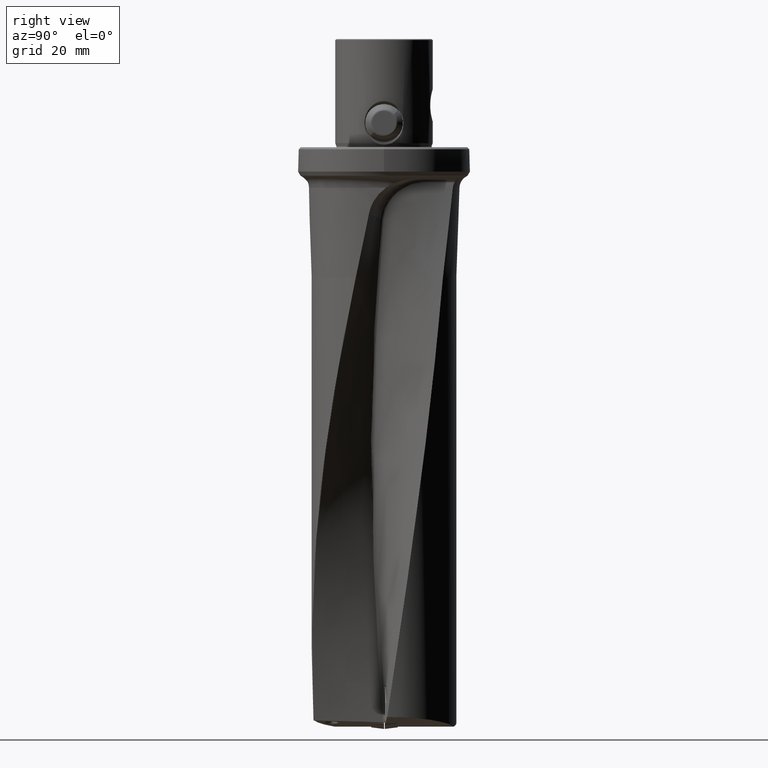
[diagram: clean part render]
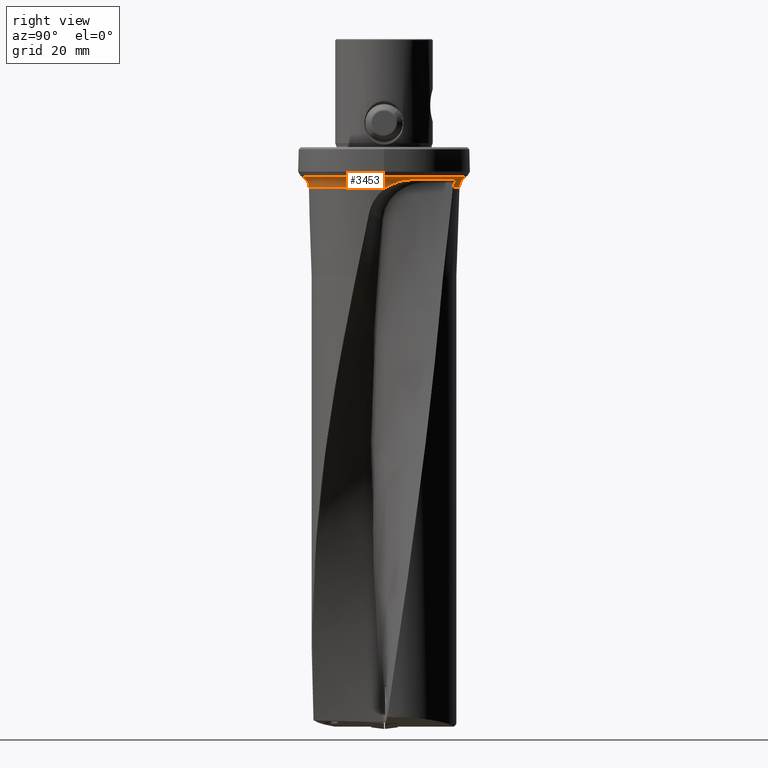
[diagram: same view with one face highlighted and labeled with its STEP entity id]
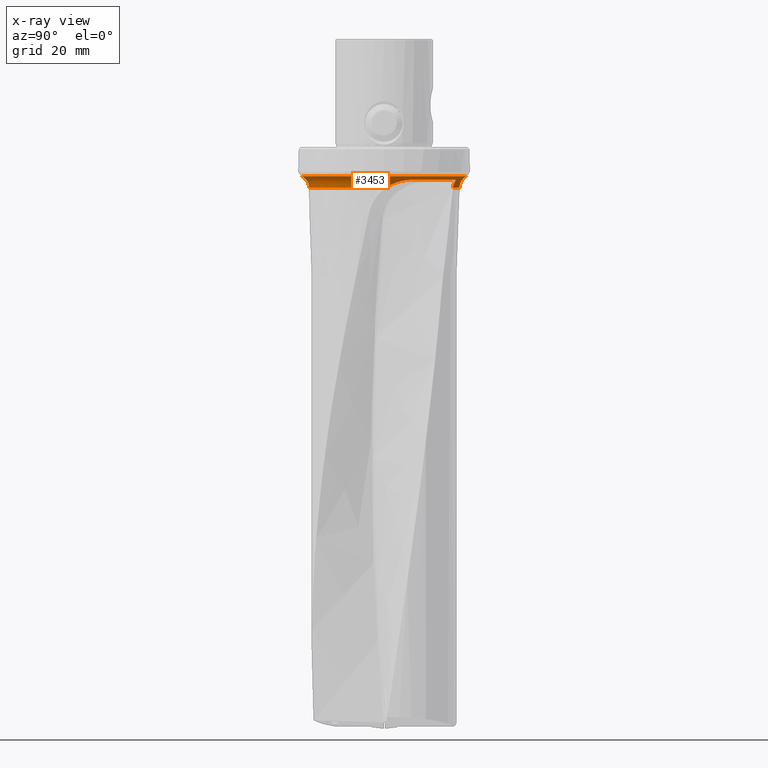
[diagram: x-ray of the same camera — body ghosted, the highlighted face saturated]
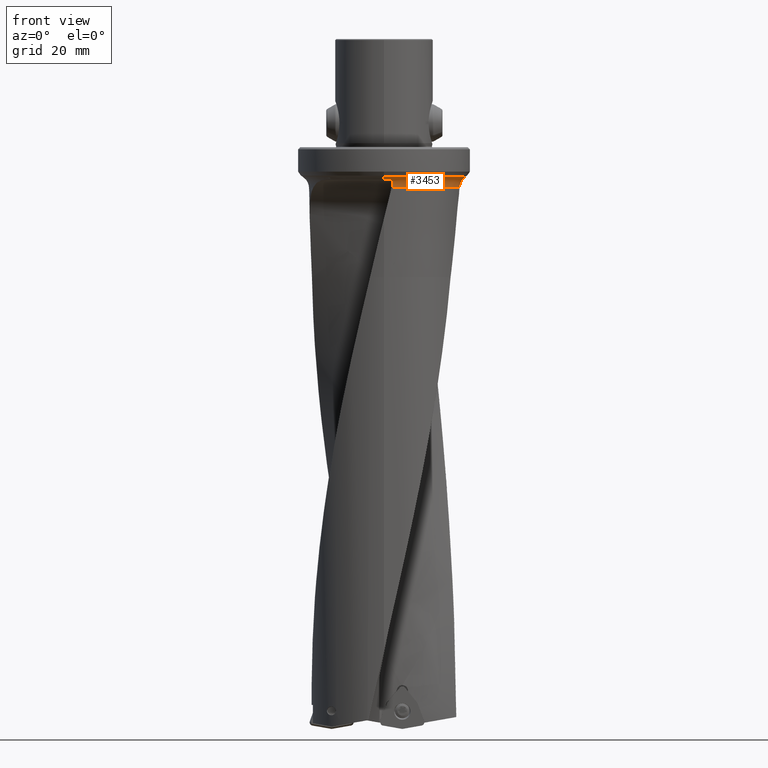
[diagram: same view with one face highlighted and labeled with its STEP entity id]
A machine part, right view. The second image highlights one B-rep face of the part: STEP entity #3453.
The next image is the same camera in x-ray: the body ghosted, the highlighted face saturated — about 0% of this face is hidden behind the body in this view.
A second angle (front view) of the same face is appended — the face is thin or edge-on in the first view.
In plain terms, the highlighted toroidal blend (fillet) surface has major radius 32.8889 mm and minor (blend) radius 5 mm.
Its self-contained STEP definition (entity closure, byte-faithful):
#1905=VERTEX_POINT('NONE',#5578);
#1907=EDGE_CURVE('NONE',#5113,#2721,#5580,.T.);
#2001=VERTEX_POINT('NONE',#5683);
#2107=EDGE_CURVE('NONE',#3007,#2721,#5804,.T.);
#2153=EDGE_CURVE('NONE',#2633,#4323,#5852,.F.);
#2159=EDGE_CURVE('NONE',#5275,#3007,#5859,.T.);
#2227=EDGE_CURVE('NONE',#4181,#5275,#5935,.F.);
#2247=VERTEX_POINT('NONE',#5958);
#2447=EDGE_CURVE('NONE',#1905,#5113,#6184,.F.);
#2539=EDGE_CURVE('NONE',#3011,#2247,#6285,.F.);
#2633=VERTEX_POINT('NONE',#6387);
#2721=VERTEX_POINT('NONE',#6487);
#3007=VERTEX_POINT('NONE',#6804);
#3011=VERTEX_POINT('NONE',#6808);
#3431=VERTEX_POINT('NONE',#7277);
#3453=ADVANCED_FACE('NONE',(#7299),#7300,.F.);
#3507=EDGE_CURVE('NONE',#2633,#2247,#7363,.T.);
#3557=EDGE_CURVE('NONE',#4181,#4579,#7420,.T.);
#4181=VERTEX_POINT('NONE',#8118);
#4323=VERTEX_POINT('NONE',#8278);
#4463=EDGE_CURVE('NONE',#2001,#3011,#8432,.F.);
#4579=VERTEX_POINT('NONE',#8558);
#5103=EDGE_CURVE('NONE',#4323,#1905,#9132,.T.);
#5113=VERTEX_POINT('NONE',#9142);
#5129=EDGE_CURVE('NONE',#3431,#2001,#9158,.T.);
#5147=EDGE_CURVE('NONE',#4579,#3431,#9176,.T.);
#5275=VERTEX_POINT('NONE',#9312);
#5578=CARTESIAN_POINT('',(12.1083328368615,26.3603492373048,-11.9630581969008));
#5580=B_SPLINE_CURVE_WITH_KNOTS('',3,(#9651,#9652,#9653,#9654,#9655,#9656,#9657,#9658,#9659,#9660),.UNSPECIFIED.,.F.,.F.,(4,3,3,4),(0.0,0.790252287392308,0.832439636912282,1.0),.UNSPECIFIED.);
#5683=CARTESIAN_POINT('',(3.24318028328191,-28.3681352558126,-12.6261020403862));
#5804=CIRCLE('',#11980,27.8919292863653);
#5852=B_SPLINE_CURVE_WITH_KNOTS('',3,(#12055,#12056,#12057,#12058,#12059,#12060,#12061,#12062,#12063,#12064,#12065,#12066,#12067,#12068,#12069,#12070),.UNSPECIFIED.,.F.,.F.,(4,3,3,3,3,4),(0.0,0.0613978699167303,0.316405089511235,0.579466575110996,0.939999661342402,1.0),.UNSPECIFIED.);
#5859=CIRCLE('',#12078,5.0);
#5935=CIRCLE('',#13711,30.3888834214608);
#5958=CARTESIAN_POINT('',(2.88386209132323,-27.742441470675,-14.9414705584278));
#6184=B_SPLINE_CURVE_WITH_KNOTS('',3,(#16850,#16851,#16852,#16853,#16854,#16855,#16856,#16857,#16858,#16859,#16860,#16861,#16862),.UNSPECIFIED.,.F.,.F.,(4,3,3,3,4),(0.0,0.106509213877376,0.487099901044093,0.768439730224223,1.0),.UNSPECIFIED.);
#6285=B_SPLINE_CURVE_WITH_KNOTS('',3,(#17651,#17652,#17653,#17654,#17655,#17656,#17657),.UNSPECIFIED.,.F.,.F.,(4,3,4),(0.0,0.83260678134299,1.0),.UNSPECIFIED.);
#6387=CARTESIAN_POINT('',(27.8818955158055,0.748078713309488,-14.9414705584278));
#6487=CARTESIAN_POINT('',(11.2729304261871,25.5123648241778,-14.9414705584278));
#6804=CARTESIAN_POINT('',(0.0,27.8919292863653,-14.9414705584278));
#6808=CARTESIAN_POINT('',(3.298175240863,-28.0332465635324,-13.3095625084391));
#7277=CARTESIAN_POINT('',(2.2181268701332,-28.9233409064183,-11.9630581969008));
#7299=FACE_OUTER_BOUND('',#31898,.T.);
#7300=TOROIDAL_SURFACE('',#31899,32.8888834214608,5.0);
#7363=CIRCLE('',#32035,27.8919292863653);
#7420=CIRCLE('',#35262,5.0);
#8118=CARTESIAN_POINT('',(-3.72144197234884E-015,-30.3888834214608,-10.7858410230181));
#8278=CARTESIAN_POINT('',(26.9184083512713,10.811060439897,-11.9630581969008));
#8432=B_SPLINE_CURVE_WITH_KNOTS('',3,(#50331,#50332,#50333,#50334,#50335,#50336,#50337),.UNSPECIFIED.,.F.,.F.,(4,3,4),(0.0,0.833334402109452,1.0),.UNSPECIFIED.);
#8558=CARTESIAN_POINT('',(-3.55237119159838E-015,-29.008270131135,-11.9630581969008));
#9132=CIRCLE('',#63049,29.008270131135);
#9142=CARTESIAN_POINT('',(11.0203498788672,26.0355174971601,-13.1969049347298));
#9158=B_SPLINE_CURVE_WITH_KNOTS('',3,(#63085,#63086,#63087,#63088,#63089,#63090,#63091,#63092,#63093,#63094,#63095,#63096,#63097),.UNSPECIFIED.,.F.,.F.,(4,3,3,3,4),(0.0,0.273973696112776,0.608163714753406,0.803862411816038,1.0),.UNSPECIFIED.);
#9176=CIRCLE('',#63129,29.008270131135);
#9312=CARTESIAN_POINT('',(0.0,30.3888834214608,-10.7858410230181));
#9651=CARTESIAN_POINT('',(11.0203498788672,26.0355174971601,-13.1969049347298));
#9652=CARTESIAN_POINT('',(11.0839832564269,25.8147450386513,-13.6263683856224));
#9653=CARTESIAN_POINT('',(11.1502621229752,25.6544772424228,-14.0869154477518));
#9654=CARTESIAN_POINT('',(11.2183670884538,25.5667661844919,-14.5614331620979));
#9655=CARTESIAN_POINT('',(11.2220028488667,25.5620837595034,-14.5867651288481));
#9656=CARTESIAN_POINT('',(11.2256547508723,25.5576005381724,-14.6121501607249));
#9657=CARTESIAN_POINT('',(11.2293016827038,25.5533306299713,-14.6375538387267));
#9658=CARTESIAN_POINT('',(11.2437866225918,25.5363713429655,-14.7384525573753));
#9659=CARTESIAN_POINT('',(11.2582750831038,25.5227232296489,-14.839768320129));
#9660=CARTESIAN_POINT('',(11.2729304261871,25.5123648241778,-14.9414705584278));
#11980=AXIS2_PLACEMENT_3D('',#75724,#75725,#75726);
#12055=CARTESIAN_POINT('',(26.9184083512713,10.811060439897,-11.9630581969008));
#12056=CARTESIAN_POINT('',(27.0007477053091,10.6060440721798,-11.9630581963573));
#12057=CARTESIAN_POINT('',(27.0785413338053,10.3991540104851,-11.9659936289604));
#12058=CARTESIAN_POINT('',(27.1516090193349,10.1907047245367,-11.9719776773909));
#12059=CARTESIAN_POINT('',(27.4550851391806,9.32494060424615,-11.9968315616424));
#12060=CARTESIAN_POINT('',(27.6748682332537,8.43100589210964,-12.0738546670871));
#12061=CARTESIAN_POINT('',(27.8081933385486,7.53518751121038,-12.2226998588616));
#12062=CARTESIAN_POINT('',(27.9457294456534,6.61107518810967,-12.3762462460377));
#12063=CARTESIAN_POINT('',(27.9935809957461,5.68776302065583,-12.6045127177852));
#12064=CARTESIAN_POINT('',(27.9940565412718,4.7920681373795,-12.9111631121525));
#12065=CARTESIAN_POINT('',(27.9947082896478,3.56449337533083,-13.3314360107991));
#12066=CARTESIAN_POINT('',(27.9094724379586,2.38973729183991,-13.8984617397076));
#12067=CARTESIAN_POINT('',(27.887028596639,1.29060063026231,-14.5876207983422));
#12068=CARTESIAN_POINT('',(27.8832934662685,1.10768101915259,-14.7023114563876));
#12069=CARTESIAN_POINT('',(27.8813313111652,0.926807978670574,-14.82034988134));
#12070=CARTESIAN_POINT('',(27.8818955158055,0.748078713309491,-14.9414705584278));
#12078=AXIS2_PLACEMENT_3D('',#75769,#75770,#75771);
#13711=AXIS2_PLACEMENT_3D('',#75858,#75859,#75860);
#16850=CARTESIAN_POINT('',(11.0203498788672,26.0355174971601,-13.1969049347298));
#16851=CARTESIAN_POINT('',(11.011220169428,26.0671925171486,-13.1352882657652));
#16852=CARTESIAN_POINT('',(11.0074106570864,26.098655139721,-13.0726126089749));
#16853=CARTESIAN_POINT('',(11.0092962651943,26.1294988814058,-13.009836047792));
#16854=CARTESIAN_POINT('',(11.0160341318948,26.2397132038598,-12.7855157877058));
#16855=CARTESIAN_POINT('',(11.0955457082269,26.3455156582134,-12.5588301140735));
#16856=CARTESIAN_POINT('',(11.2466696918017,26.4144634849553,-12.3720164343839));
#16857=CARTESIAN_POINT('',(11.3583833967283,26.4654310216082,-12.2339202315481));
#16858=CARTESIAN_POINT('',(11.5108570134323,26.4941750415076,-12.1181772210268));
#16859=CARTESIAN_POINT('',(11.6811526225691,26.4786662926578,-12.0479838702433));
#16860=CARTESIAN_POINT('',(11.8213165563721,26.4659016226926,-11.9902103538121));
#16861=CARTESIAN_POINT('',(11.970274812206,26.4237646664973,-11.9630581821685));
#16862=CARTESIAN_POINT('',(12.1083328368615,26.3603492373048,-11.9630581969008));
#17651=CARTESIAN_POINT('',(2.88386209132324,-27.742441470675,-14.9414705584278));
#17652=CARTESIAN_POINT('',(3.00193942146783,-27.7463658639188,-14.4800871249076));
#17653=CARTESIAN_POINT('',(3.11848647971643,-27.814433292004,-14.018621648459));
#17654=CARTESIAN_POINT('',(3.23086903219166,-27.9461511020979,-13.5749158267765));
#17655=CARTESIAN_POINT('',(3.25346322383321,-27.9726325921364,-13.4857100368495));
#17656=CARTESIAN_POINT('',(3.27591254490796,-28.0016843762223,-13.3971795923856));
#17657=CARTESIAN_POINT('',(3.29817524086302,-28.0332465635324,-13.3095625084391));
#31898=EDGE_LOOP('',(#77477,#77478,#77479,#77480,#77481,#77482,#77483,#77484,#77485,#77486,#77487,#77488,#77489));
#31899=AXIS2_PLACEMENT_3D('',#77490,#77491,#77492);
#32035=AXIS2_PLACEMENT_3D('',#77590,#77591,#77592);
#35262=AXIS2_PLACEMENT_3D('',#77671,#77672,#77673);
#50331=CARTESIAN_POINT('',(3.29817524086302,-28.0332465635324,-13.3095625084391));
#50332=CARTESIAN_POINT('',(3.34824339751198,-28.1042290752926,-13.112514054021));
#50333=CARTESIAN_POINT('',(3.33883666258207,-28.1997378362597,-12.9111029640503));
#50334=CARTESIAN_POINT('',(3.28249380490284,-28.3044295262271,-12.7314030137805));
#50335=CARTESIAN_POINT('',(3.27122532008066,-28.3253677030963,-12.6954633002912));
#50336=CARTESIAN_POINT('',(3.25807887145353,-28.3466506966254,-12.6603270964997));
#50337=CARTESIAN_POINT('',(3.24318028328193,-28.3681352558126,-12.6261020403862));
#63049=AXIS2_PLACEMENT_3D('',#79602,#79603,#79604);
#63085=CARTESIAN_POINT('',(2.21812687013321,-28.9233409064183,-11.9630581969008));
#63086=CARTESIAN_POINT('',(2.34710007907122,-28.9134499420469,-11.9630582305955));
#63087=CARTESIAN_POINT('',(2.47434523909898,-28.8838126313121,-11.986062120945));
#63088=CARTESIAN_POINT('',(2.59003988175539,-28.8417117725902,-12.0262472487746));
#63089=CARTESIAN_POINT('',(2.73116289952881,-28.7903576208572,-12.0752646136129));
#63090=CARTESIAN_POINT('',(2.85607328245049,-28.7209565814375,-12.1495116887099));
#63091=CARTESIAN_POINT('',(2.96086610811955,-28.645605720957,-12.2408210995626));
#63092=CARTESIAN_POINT('',(3.02223185305821,-28.6014809284855,-12.2942910769309));
#63093=CARTESIAN_POINT('',(3.07682546367376,-28.5552723841352,-12.3536261054698));
#63094=CARTESIAN_POINT('',(3.1240092405756,-28.5085341443777,-12.4181016045157));
#63095=CARTESIAN_POINT('',(3.17129883596813,-28.4616910853303,-12.4827217019902));
#63096=CARTESIAN_POINT('',(3.21114645438611,-28.4143297290468,-12.5525139172462));
#63097=CARTESIAN_POINT('',(3.24318028328193,-28.3681352558126,-12.6261020403862));
#63129=AXIS2_PLACEMENT_3D('',#79631,#79632,#79633);
#75724=CARTESIAN_POINT('',(0.0,0.0,-14.9414705584278));
#75725=DIRECTION('',(0.0,0.0,-1.0));
#75726=DIRECTION('',(0.0,1.0,0.0));
#75769=CARTESIAN_POINT('',(0.0,32.8888834214608,-15.1159680419403));
#75770=DIRECTION('',(1.0,0.0,0.0));
#75771=DIRECTION('',(0.0,-1.0,0.0));
#75858=CARTESIAN_POINT('',(0.0,0.0,-10.7858410230181));
#75859=DIRECTION('',(0.0,0.0,-1.0));
#75860=DIRECTION('',(0.0,1.0,0.0));
#77477=ORIENTED_EDGE('',*,*,#2227,.F.);
#77478=ORIENTED_EDGE('',*,*,#3557,.T.);
#77479=ORIENTED_EDGE('',*,*,#5147,.T.);
#77480=ORIENTED_EDGE('',*,*,#5129,.T.);
#77481=ORIENTED_EDGE('',*,*,#4463,.T.);
#77482=ORIENTED_EDGE('',*,*,#2539,.T.);
#77483=ORIENTED_EDGE('',*,*,#3507,.F.);
#77484=ORIENTED_EDGE('',*,*,#2153,.T.);
#77485=ORIENTED_EDGE('',*,*,#5103,.T.);
#77486=ORIENTED_EDGE('',*,*,#2447,.T.);
#77487=ORIENTED_EDGE('',*,*,#1907,.T.);
#77488=ORIENTED_EDGE('',*,*,#2107,.F.);
#77489=ORIENTED_EDGE('',*,*,#2159,.F.);
#77490=CARTESIAN_POINT('',(0.0,0.0,-15.1159680419403));
#77491=DIRECTION('',(0.0,-0.0,1.0));
#77492=DIRECTION('',(0.0,1.0,0.0));
#77590=CARTESIAN_POINT('',(0.0,0.0,-14.9414705584278));
#77591=DIRECTION('',(0.0,0.0,-1.0));
#77592=DIRECTION('',(0.0,1.0,0.0));
#77671=CARTESIAN_POINT('',(-4.02759356080443E-015,-32.8888834214608,-15.1159680419403));
#77672=DIRECTION('',(-1.0,1.22460635382238E-016,0.0));
#77673=DIRECTION('',(1.22460635382238E-016,1.0,0.0));
#79602=CARTESIAN_POINT('',(0.0,0.0,-11.9630581969008));
#79603=DIRECTION('',(0.0,-0.0,1.0));
#79604=DIRECTION('',(0.0,1.0,0.0));
#79631=CARTESIAN_POINT('',(0.0,0.0,-11.9630581969008));
#79632=DIRECTION('',(0.0,-0.0,1.0));
#79633=DIRECTION('',(0.0,1.0,0.0));